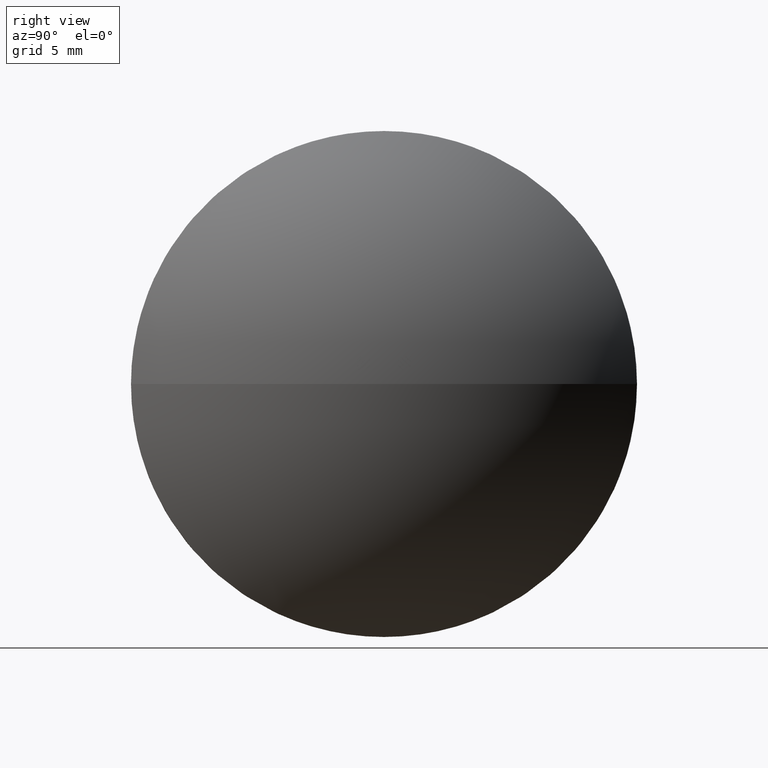
[diagram: clean part render]
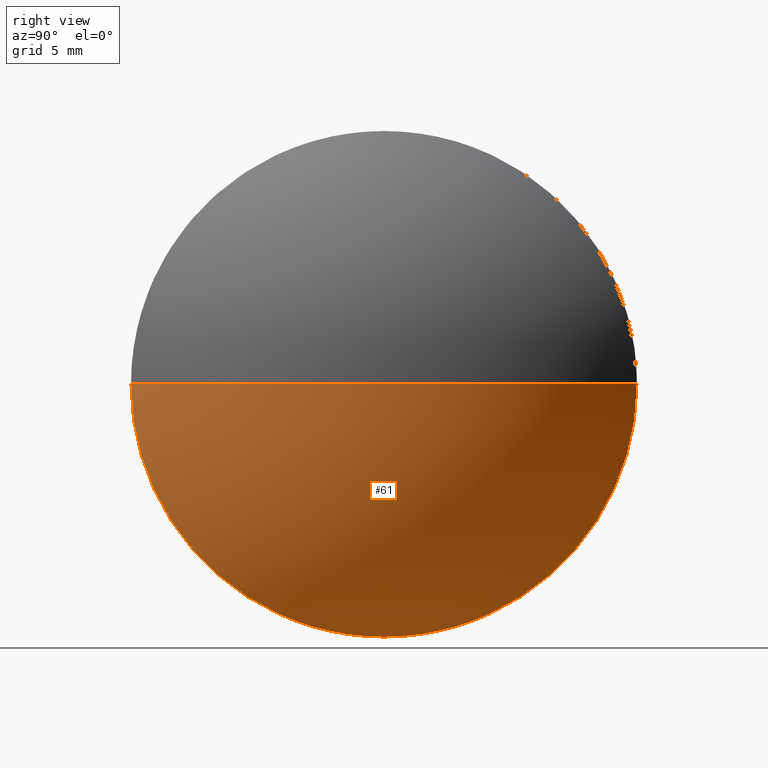
[diagram: same view with one face highlighted and labeled with its STEP entity id]
A machine part, right view. The second image highlights one B-rep face of the part: STEP entity #61.
In plain terms, the highlighted spherical surface has radius 25.837 mm.
Its self-contained STEP definition (entity closure, byte-faithful):
#6 = VERTEX_POINT ( 'NONE', #110 ) ;
#8 = EDGE_CURVE ( 'NONE', #20, #178, #69, .T. ) ;
#16 = DIRECTION ( 'NONE',  ( 0.0000000000000000000, 1.224646799147353200E-016, -1.000000000000000000 ) ) ;
#20 = VERTEX_POINT ( 'NONE', #120 ) ;
#21 = EDGE_CURVE ( 'NONE', #180, #6, #107, .T. ) ;
#24 = DIRECTION ( 'NONE',  ( 0.0000000000000000000, 1.000000000000000000, 0.0000000000000000000 ) ) ;
#28 = AXIS2_PLACEMENT_3D ( 'NONE', #94, #139, #82 ) ;
#40 = DIRECTION ( 'NONE',  ( -1.000000000000000000, -0.0000000000000000000, -0.0000000000000000000 ) ) ;
#51 = CARTESIAN_POINT ( 'NONE',  ( 375.4524473396306200, 98.70227120915240000, 0.0000000000000000000 ) ) ;
#53 = ORIENTED_EDGE ( 'NONE', *, *, #21, .F. ) ;
#61 = ADVANCED_FACE ( 'NONE', ( #147 ), #89, .T. ) ;
#64 = EDGE_CURVE ( 'NONE', #6, #20, #137, .T. ) ;
#66 = DIRECTION ( 'NONE',  ( -0.0000000000000000000, 0.0000000000000000000, -1.000000000000000000 ) ) ;
#69 = CIRCLE ( 'NONE', #28, 20.00000000000000400 ) ;
#70 = EDGE_CURVE ( 'NONE', #180, #178, #173, .T. ) ;
#77 = ORIENTED_EDGE ( 'NONE', *, *, #64, .F. ) ;
#81 = DIRECTION ( 'NONE',  ( 1.000000000000000000, 0.0000000000000000000, 0.0000000000000000000 ) ) ;
#82 = DIRECTION ( 'NONE',  ( 0.0000000000000000000, 0.0000000000000000000, 1.000000000000000000 ) ) ;
#89 = SPHERICAL_SURFACE ( 'NONE', #108, 25.83704641350215100 ) ;
#94 = CARTESIAN_POINT ( 'NONE',  ( 391.8094937531328100, 98.70227120915240000, 0.0000000000000000000 ) ) ;
#99 = DIRECTION ( 'NONE',  ( 0.0000000000000000000, 0.0000000000000000000, 1.000000000000000000 ) ) ;
#106 = AXIS2_PLACEMENT_3D ( 'NONE', #141, #16, #157 ) ;
#107 = CIRCLE ( 'NONE', #117, 25.83704641350215100 ) ;
#108 = AXIS2_PLACEMENT_3D ( 'NONE', #51, #66, #24 ) ;
#110 = CARTESIAN_POINT ( 'NONE',  ( 391.8094937531328100, 118.7022712091524100, 0.0000000000000000000 ) ) ;
#117 = AXIS2_PLACEMENT_3D ( 'NONE', #164, #181, #81 ) ;
#120 = CARTESIAN_POINT ( 'NONE',  ( 391.8094937531328100, 98.70227120915240000, -20.00000000000000400 ) ) ;
#126 = CARTESIAN_POINT ( 'NONE',  ( 391.8094937531328100, 78.70227120915238600, -2.449293598294707300E-015 ) ) ;
#130 = ORIENTED_EDGE ( 'NONE', *, *, #70, .T. ) ;
#131 = EDGE_LOOP ( 'NONE', ( #53, #130, #174, #77 ) ) ;
#132 = AXIS2_PLACEMENT_3D ( 'NONE', #140, #40, #99 ) ;
#137 = CIRCLE ( 'NONE', #132, 20.00000000000000400 ) ;
#139 = DIRECTION ( 'NONE',  ( -1.000000000000000000, -0.0000000000000000000, -0.0000000000000000000 ) ) ;
#140 = CARTESIAN_POINT ( 'NONE',  ( 391.8094937531328100, 98.70227120915240000, 0.0000000000000000000 ) ) ;
#141 = CARTESIAN_POINT ( 'NONE',  ( 375.4524473396306200, 98.70227120915240000, 0.0000000000000000000 ) ) ;
#147 = FACE_OUTER_BOUND ( 'NONE', #131, .T. ) ;
#152 = CARTESIAN_POINT ( 'NONE',  ( 401.2894937531327700, 98.70227120915240000, 0.0000000000000000000 ) ) ;
#157 = DIRECTION ( 'NONE',  ( 0.0000000000000000000, 1.000000000000000000, 1.224646799147353200E-016 ) ) ;
#164 = CARTESIAN_POINT ( 'NONE',  ( 375.4524473396306200, 98.70227120915240000, 0.0000000000000000000 ) ) ;
#173 = CIRCLE ( 'NONE', #106, 25.83704641350215100 ) ;
#174 = ORIENTED_EDGE ( 'NONE', *, *, #8, .F. ) ;
#178 = VERTEX_POINT ( 'NONE', #126 ) ;
#180 = VERTEX_POINT ( 'NONE', #152 ) ;
#181 = DIRECTION ( 'NONE',  ( -0.0000000000000000000, 0.0000000000000000000, 1.000000000000000000 ) ) ;